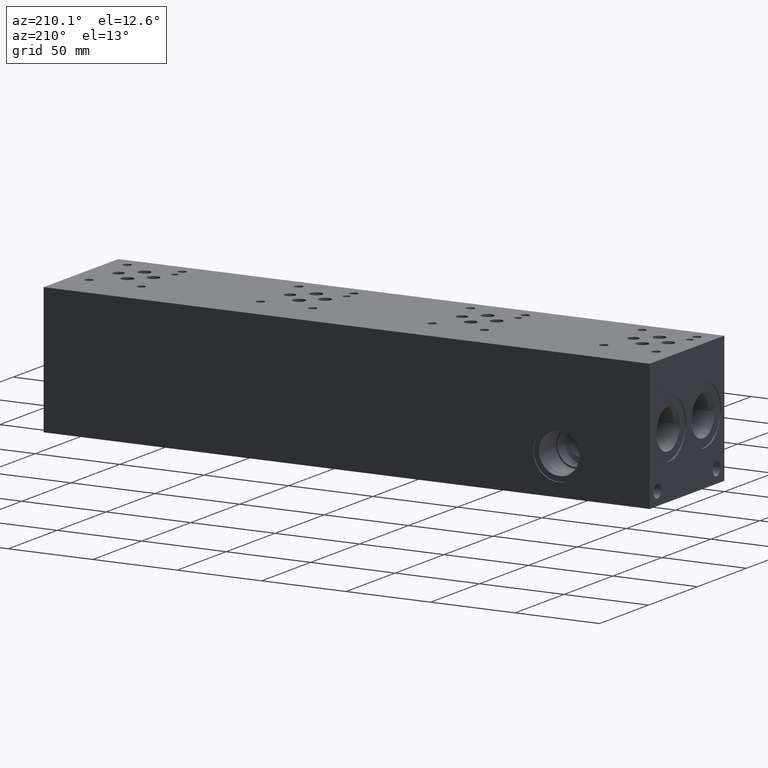
[diagram: clean part render]
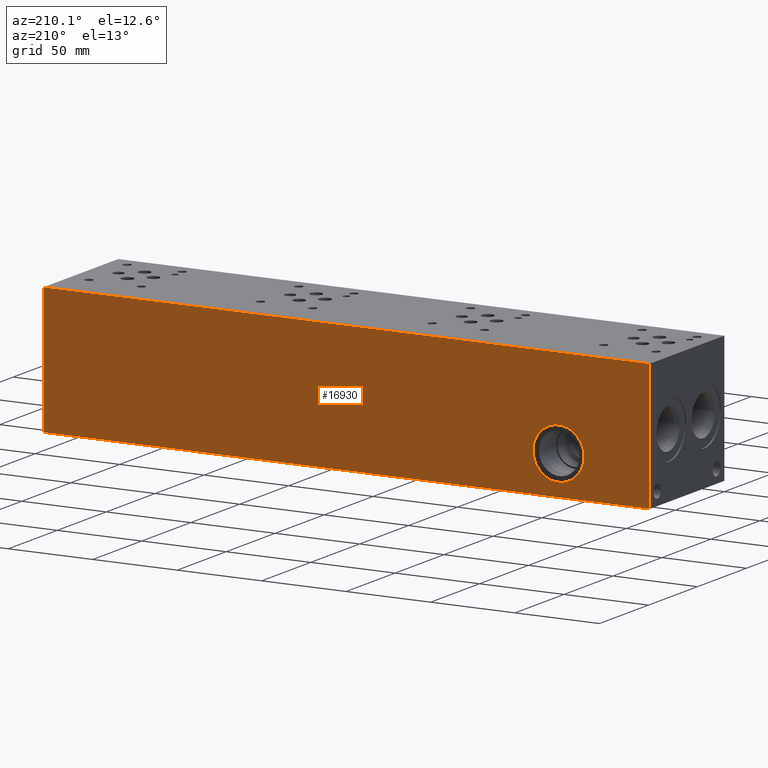
[diagram: same view with one face highlighted and labeled with its STEP entity id]
A machine part, auxiliary view. The second image highlights one B-rep face of the part: STEP entity #16930.
In plain terms, the highlighted planar face has unit normal (0, 1, 0).
Its self-contained STEP definition (entity closure, byte-faithful):
#327=CIRCLE('',#17430,15.08);
#328=CIRCLE('',#17431,15.08);
#909=FACE_BOUND('',#3399,.T.);
#2390=FACE_OUTER_BOUND('',#3398,.T.);
#3398=EDGE_LOOP('',(#14945,#14946,#14947,#14948));
#3399=EDGE_LOOP('',(#14949,#14950));
#4562=LINE('',#27411,#6013);
#4622=LINE('',#27684,#6073);
#4890=LINE('',#29411,#6341);
#4891=LINE('',#29412,#6342);
#6013=VECTOR('',#20064,10.);
#6073=VECTOR('',#20178,10.);
#6341=VECTOR('',#22058,10.);
#6342=VECTOR('',#22059,10.);
#7345=VERTEX_POINT('',#27408);
#7346=VERTEX_POINT('',#27410);
#7403=VERTEX_POINT('',#27680);
#7404=VERTEX_POINT('',#27682);
#7468=VERTEX_POINT('',#27934);
#7469=VERTEX_POINT('',#27935);
#9471=EDGE_CURVE('',#7345,#7346,#4562,.T.);
#9555=EDGE_CURVE('',#7403,#7404,#4622,.T.);
#9644=EDGE_CURVE('',#7468,#7469,#327,.T.);
#9645=EDGE_CURVE('',#7469,#7468,#328,.T.);
#10331=EDGE_CURVE('',#7345,#7403,#4890,.T.);
#10332=EDGE_CURVE('',#7346,#7404,#4891,.T.);
#14945=ORIENTED_EDGE('',*,*,#10331,.T.);
#14946=ORIENTED_EDGE('',*,*,#9555,.T.);
#14947=ORIENTED_EDGE('',*,*,#10332,.F.);
#14948=ORIENTED_EDGE('',*,*,#9471,.F.);
#14949=ORIENTED_EDGE('',*,*,#9644,.T.);
#14950=ORIENTED_EDGE('',*,*,#9645,.T.);
#15490=PLANE('',#18166);
#16930=ADVANCED_FACE('',(#2390,#909),#15490,.T.);
#17430=AXIS2_PLACEMENT_3D('',#27936,#20354,#20355);
#17431=AXIS2_PLACEMENT_3D('',#27937,#20356,#20357);
#18166=AXIS2_PLACEMENT_3D('',#29410,#22056,#22057);
#20064=DIRECTION('',(0.,0.,1.));
#20178=DIRECTION('',(0.,0.,1.));
#20354=DIRECTION('center_axis',(0.,-1.,0.));
#20355=DIRECTION('ref_axis',(1.,0.,0.));
#20356=DIRECTION('center_axis',(0.,-1.,0.));
#20357=DIRECTION('ref_axis',(1.,0.,0.));
#22056=DIRECTION('center_axis',(0.,1.,0.));
#22057=DIRECTION('ref_axis',(-1.,0.,0.));
#22058=DIRECTION('',(-1.,0.,0.));
#22059=DIRECTION('',(-1.,0.,0.));
#27408=CARTESIAN_POINT('',(358.775,76.2,0.));
#27410=CARTESIAN_POINT('',(358.775,76.2,76.2));
#27411=CARTESIAN_POINT('',(358.775,76.2,0.));
#27680=CARTESIAN_POINT('',(0.,76.2,0.));
#27682=CARTESIAN_POINT('',(0.,76.2,76.2));
#27684=CARTESIAN_POINT('',(0.,76.2,0.));
#27934=CARTESIAN_POINT('',(69.055,76.2,23.0124));
#27935=CARTESIAN_POINT('',(38.895,76.2,23.0124));
#27936=CARTESIAN_POINT('Origin',(53.975,76.2,23.0124));
#27937=CARTESIAN_POINT('Origin',(53.975,76.2,23.0124));
#29410=CARTESIAN_POINT('Origin',(358.775,76.2,0.));
#29411=CARTESIAN_POINT('',(358.775,76.2,0.));
#29412=CARTESIAN_POINT('',(358.775,76.2,76.2));